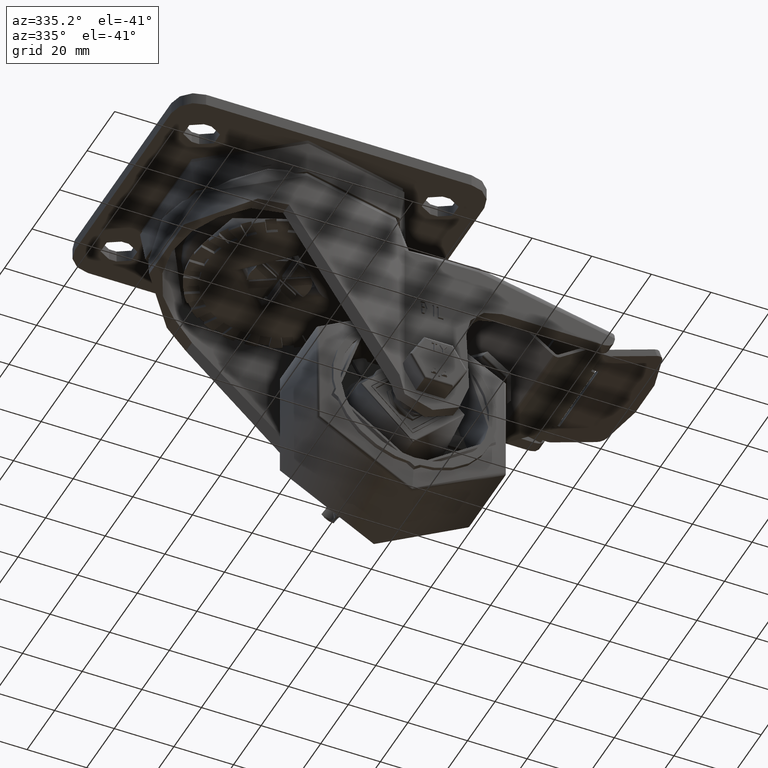
[diagram: clean part render]
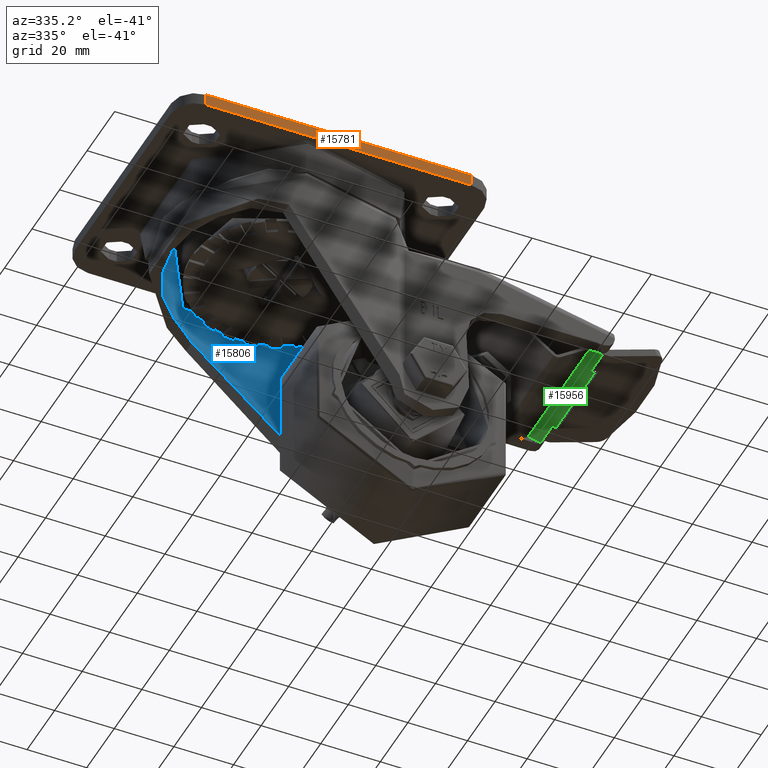
[diagram: same view with three faces highlighted in distinct colors, each labeled with its STEP entity id]
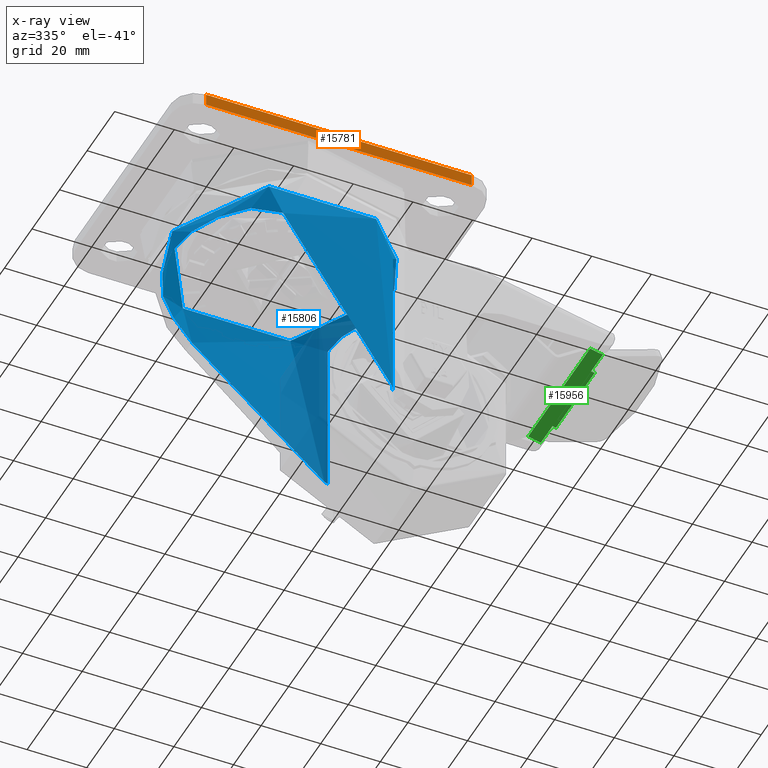
[diagram: x-ray of the same camera — body ghosted, the three highlighted faces saturated]
A machine part, auxiliary view with three faces highlighted in distinct colors.
The next image is the same camera in x-ray (body ghosted, the three faces saturated) — at least one of them is partly hidden behind the body in this view.
Their STEP definitions:

[orange] entity #15781 — the highlighted planar face has unit normal (0, -1, 0).
#1141=PLANE('',#17175);
#1711=FACE_OUTER_BOUND('',#2686,.T.);
#2686=EDGE_LOOP('',(#11418,#11419,#11420,#11421));
#3578=LINE('',#23631,#4670);
#3581=LINE('',#23643,#4673);
#3840=LINE('',#24429,#4932);
#3851=LINE('',#24443,#4943);
#4670=VECTOR('',#18837,1000.);
#4673=VECTOR('',#18848,1000.);
#4932=VECTOR('',#19649,1000.);
#4943=VECTOR('',#19666,1000.);
#6672=VERTEX_POINT('',#23628);
#6673=VERTEX_POINT('',#23630);
#6675=VERTEX_POINT('',#23636);
#6678=VERTEX_POINT('',#23641);
#8178=EDGE_CURVE('',#6672,#6673,#3578,.T.);
#8184=EDGE_CURVE('',#6678,#6675,#3581,.T.);
#8575=EDGE_CURVE('',#6672,#6675,#3840,.T.);
#8586=EDGE_CURVE('',#6678,#6673,#3851,.T.);
#11418=ORIENTED_EDGE('',*,*,#8184,.F.);
#11419=ORIENTED_EDGE('',*,*,#8586,.T.);
#11420=ORIENTED_EDGE('',*,*,#8178,.F.);
#11421=ORIENTED_EDGE('',*,*,#8575,.T.);
#15781=ADVANCED_FACE('',(#1711),#1141,.T.);
#17175=AXIS2_PLACEMENT_3D('',#24442,#19664,#19665);
#18837=DIRECTION('',(0.,0.,-1.));
#18848=DIRECTION('',(0.,0.,1.));
#19649=DIRECTION('',(-1.,0.,0.));
#19664=DIRECTION('center_axis',(0.,-1.,0.));
#19665=DIRECTION('ref_axis',(-1.,0.,0.));
#19666=DIRECTION('',(1.,0.,0.));
#23628=CARTESIAN_POINT('',(44.5,-43.,0.));
#23630=CARTESIAN_POINT('',(44.5,-43.,-4.));
#23631=CARTESIAN_POINT('',(44.5,-43.,0.));
#23636=CARTESIAN_POINT('',(-44.5,-43.,0.));
#23641=CARTESIAN_POINT('',(-44.5,-43.,-4.));
#23643=CARTESIAN_POINT('',(-44.5,-43.,0.));
#24429=CARTESIAN_POINT('',(52.5,-43.,0.));
#24442=CARTESIAN_POINT('Origin',(0.,-43.,0.));
#24443=CARTESIAN_POINT('',(52.5,-43.,-4.));

[blue] entity #15806 — the highlighted cylindrical surface (bore or boss wall) has radius 36 mm, axis along (0, 0, 1).
#484=B_SPLINE_CURVE_WITH_KNOTS('',3,(#24670,#24671,#24672,#24673),
 .UNSPECIFIED.,.F.,.F.,(4,4),(0.63297437132066,0.80506820590576),
 .UNSPECIFIED.);
#486=B_SPLINE_CURVE_WITH_KNOTS('',3,(#24685,#24686,#24687,#24688,#24689,
#24690,#24691,#24692,#24693,#24694),.UNSPECIFIED.,.F.,.F.,(4,2,2,2,4),(-21.4689637785978,
-21.3846147476685,-21.133643598647,-20.6734660432281,-20.4853687488418),
 .UNSPECIFIED.);
#487=B_SPLINE_CURVE_WITH_KNOTS('',3,(#24696,#24697,#24698,#24699,#24700,
#24701,#24702,#24703,#24704,#24705,#24706,#24707,#24708,#24709),
 .UNSPECIFIED.,.F.,.F.,(4,2,2,2,2,2,4),(-22.8253465363381,-22.569587741747,
-20.7713476717423,-18.9731076017376,-17.1748675317328,-16.4894518062821,
-16.4640457778498),.UNSPECIFIED.);
#488=B_SPLINE_CURVE_WITH_KNOTS('',3,(#24711,#24712,#24713,#24714),
 .UNSPECIFIED.,.F.,.F.,(4,4),(5.94662976585578,6.11872360044088),
 .UNSPECIFIED.);
#489=B_SPLINE_CURVE_WITH_KNOTS('',3,(#24718,#24719,#24720,#24721,#24722,
#24723,#24724,#24725,#24726,#24727,#24728,#24729,#24730,#24731,#24732,#24733,
#24734,#24735,#24736,#24737,#24738,#24739,#24740,#24741,#24742,#24743,#24744,
#24745,#24746,#24747,#24748,#24749,#24750,#24751,#24752,#24753,#24754,#24755,
#24756,#24757,#24758,#24759,#24760,#24761,#24762,#24763,#24764,#24765,#24766,
#24767,#24768,#24769),.UNSPECIFIED.,.F.,.F.,(4,3,3,3,3,3,3,3,3,3,3,3,3,
3,3,3,3,4),(-0.0070621197024796,-0.00673436486712896,-0.00611087053562126,
-0.00551750730298507,-0.00548742412780073,-0.00470811392198833,-0.00398377296965056,
-0.00353105898481995,-0.00307835983597059,-0.00307587917927862,-0.00235398726430527,
-0.00162622044506162,-0.00157543042059886,-0.0015498616019621,-0.000987154464468624,
-0.000596100616139268,-0.000398820204950402,0.),.UNSPECIFIED.);
#490=B_SPLINE_CURVE_WITH_KNOTS('',3,(#24773,#24774,#24775,#24776,#24777,
#24778,#24779,#24780,#24781,#24782,#24783,#24784,#24785,#24786,#24787,#24788,
#24789,#24790,#24791,#24792,#24793,#24794,#24795,#24796,#24797,#24798,#24799,
#24800,#24801,#24802,#24803,#24804,#24805,#24806,#24807,#24808,#24809,#24810,
#24811,#24812,#24813,#24814,#24815,#24816,#24817,#24818,#24819,#24820,#24821,
#24822,#24823,#24824,#24825,#24826,#24827,#24828,#24829,#24830),
 .UNSPECIFIED.,.F.,.F.,(4,3,3,3,3,3,3,3,3,3,3,3,3,3,3,3,3,3,3,4),(-0.00706133115819038,
-0.00680360496532051,-0.00678056333369026,-0.00651430579573841,-0.00623421773635698,
-0.00620985804769003,-0.0059378872986943,-0.00564205092754327,-0.00530461472474858,
-0.00501916233478228,-0.00472517933490894,-0.00467134215080287,-0.00462308037776127,
-0.00398341345564613,-0.00353075202837451,-0.00307806217607451,-0.00235377705273013,
-0.0011949946354082,-0.000905298866434664,0.),.UNSPECIFIED.);
#491=B_SPLINE_CURVE_WITH_KNOTS('',3,(#24833,#24834,#24835,#24836,#24837,
#24838,#24839,#24840,#24841,#24842,#24843,#24844,#24845,#24846),
 .UNSPECIFIED.,.F.,.F.,(4,2,2,2,2,2,4),(-7.90378237478147,-7.87837623259532,
-7.19296048497718,-5.39472036373289,-3.59648024248859,-1.7982401212443,
-1.54248160896631),.UNSPECIFIED.);
#492=B_SPLINE_CURVE_WITH_KNOTS('',3,(#24848,#24849,#24850,#24851,#24852,
#24853,#24854,#24855,#24856,#24857),.UNSPECIFIED.,.F.,.F.,(4,2,2,2,4),(-13.6077598613843,
-13.4196625669979,-12.959485011579,-12.7085138625576,-12.6241648316283),
 .UNSPECIFIED.);
#1736=FACE_OUTER_BOUND('',#2716,.T.);
#2716=EDGE_LOOP('',(#11556,#11557,#11558,#11559,#11560,#11561,#11562,#11563,
#11564,#11565,#11566,#11567,#11568,#11569,#11570,#11571));
#3882=LINE('',#24716,#4974);
#3883=LINE('',#24831,#4975);
#3884=LINE('',#24859,#4976);
#4974=VECTOR('',#19801,1000.);
#4975=VECTOR('',#19804,1000.);
#4976=VECTOR('',#19807,36.);
#5915=CIRCLE('',#17212,36.);
#5920=CIRCLE('',#17227,36.);
#5921=CIRCLE('',#17228,36.);
#5922=CIRCLE('',#17229,36.);
#6966=VERTEX_POINT('',#24631);
#6979=VERTEX_POINT('',#24667);
#6980=VERTEX_POINT('',#24669);
#6981=VERTEX_POINT('',#24681);
#6982=VERTEX_POINT('',#24682);
#6983=VERTEX_POINT('',#24684);
#6984=VERTEX_POINT('',#24695);
#6985=VERTEX_POINT('',#24710);
#6986=VERTEX_POINT('',#24715);
#6987=VERTEX_POINT('',#24717);
#6988=VERTEX_POINT('',#24770);
#6989=VERTEX_POINT('',#24772);
#6990=VERTEX_POINT('',#24832);
#6991=VERTEX_POINT('',#24847);
#8633=EDGE_CURVE('',#6966,#6966,#5915,.T.);
#8652=EDGE_CURVE('',#6979,#6980,#484,.T.);
#8654=EDGE_CURVE('',#6981,#6982,#5920,.T.);
#8655=EDGE_CURVE('',#6983,#6981,#486,.T.);
#8656=EDGE_CURVE('',#6984,#6983,#487,.T.);
#8657=EDGE_CURVE('',#6985,#6984,#488,.T.);
#8658=EDGE_CURVE('',#6986,#6985,#3882,.T.);
#8659=EDGE_CURVE('',#6987,#6986,#489,.T.);
#8660=EDGE_CURVE('',#6988,#6987,#5921,.T.);
#8661=EDGE_CURVE('',#6989,#6988,#490,.T.);
#8662=EDGE_CURVE('',#6980,#6989,#3883,.T.);
#8663=EDGE_CURVE('',#6990,#6979,#491,.T.);
#8664=EDGE_CURVE('',#6991,#6990,#492,.T.);
#8665=EDGE_CURVE('',#6982,#6991,#5922,.T.);
#8666=EDGE_CURVE('',#6982,#6966,#3884,.T.);
#11556=ORIENTED_EDGE('',*,*,#8654,.F.);
#11557=ORIENTED_EDGE('',*,*,#8655,.F.);
#11558=ORIENTED_EDGE('',*,*,#8656,.F.);
#11559=ORIENTED_EDGE('',*,*,#8657,.F.);
#11560=ORIENTED_EDGE('',*,*,#8658,.F.);
#11561=ORIENTED_EDGE('',*,*,#8659,.F.);
#11562=ORIENTED_EDGE('',*,*,#8660,.F.);
#11563=ORIENTED_EDGE('',*,*,#8661,.F.);
#11564=ORIENTED_EDGE('',*,*,#8662,.F.);
#11565=ORIENTED_EDGE('',*,*,#8652,.F.);
#11566=ORIENTED_EDGE('',*,*,#8663,.F.);
#11567=ORIENTED_EDGE('',*,*,#8664,.F.);
#11568=ORIENTED_EDGE('',*,*,#8665,.F.);
#11569=ORIENTED_EDGE('',*,*,#8666,.T.);
#11570=ORIENTED_EDGE('',*,*,#8633,.F.);
#11571=ORIENTED_EDGE('',*,*,#8666,.F.);
#15395=CYLINDRICAL_SURFACE('',#17226,36.);
#15806=ADVANCED_FACE('',(#1736),#15395,.F.);
#17212=AXIS2_PLACEMENT_3D('',#24632,#19759,#19760);
#17226=AXIS2_PLACEMENT_3D('',#24680,#19797,#19798);
#17227=AXIS2_PLACEMENT_3D('',#24683,#19799,#19800);
#17228=AXIS2_PLACEMENT_3D('',#24771,#19802,#19803);
#17229=AXIS2_PLACEMENT_3D('',#24858,#19805,#19806);
#19759=DIRECTION('center_axis',(-3.85494105772624E-16,0.,-1.));
#19760=DIRECTION('ref_axis',(1.,0.,-3.85494105772624E-16));
#19797=DIRECTION('center_axis',(2.89120579329468E-16,0.,1.));
#19798=DIRECTION('ref_axis',(1.,0.,-2.89120579329468E-16));
#19799=DIRECTION('center_axis',(-3.98096831679234E-16,0.,1.));
#19800=DIRECTION('ref_axis',(1.,0.,3.98096831679234E-16));
#19801=DIRECTION('',(-2.89120579329468E-16,0.,-1.));
#19802=DIRECTION('center_axis',(1.27116381754407E-15,0.,1.));
#19803=DIRECTION('ref_axis',(1.,-2.22044604925031E-16,-1.27116381754407E-15));
#19804=DIRECTION('',(2.89120579329468E-16,0.,1.));
#19805=DIRECTION('center_axis',(-3.98096831679234E-16,0.,1.));
#19806=DIRECTION('ref_axis',(1.,0.,3.98096831679234E-16));
#19807=DIRECTION('',(2.89120579329468E-16,0.,1.));
#24631=CARTESIAN_POINT('',(-36.,2.53016542697676E-15,-18.));
#24632=CARTESIAN_POINT('Origin',(-1.13046146517821E-15,6.93889390390723E-15,
-18.));
#24667=CARTESIAN_POINT('',(26.3193158417228,-24.56203602358,-77.));
#24669=CARTESIAN_POINT('',(27.1119562508143,-23.6842105262964,-78.3409049661208));
#24670=CARTESIAN_POINT('Ctrl Pts',(26.3193158417228,-24.5620360235799,-76.9999999999999));
#24671=CARTESIAN_POINT('Ctrl Pts',(26.563682294878,-24.3001864824613,-77.4757278930307));
#24672=CARTESIAN_POINT('Ctrl Pts',(26.8310994777145,-24.0057148693091,-77.9243376836035));
#24673=CARTESIAN_POINT('Ctrl Pts',(27.1119562508226,-23.6842105262869,-78.3409049661079));
#24680=CARTESIAN_POINT('Origin',(-2.42861286636753E-14,6.93889390390723E-15,
-98.09));
#24681=CARTESIAN_POINT('',(-22.5698338903178,28.0464364610455,-26.));
#24682=CARTESIAN_POINT('',(-36.,2.53016542697676E-15,-26.));
#24683=CARTESIAN_POINT('Origin',(-3.44342609981396E-15,6.93889390390723E-15,
-26.));
#24684=CARTESIAN_POINT('',(-14.11431907495,33.1177595415285,-28.8418518916849));
#24685=CARTESIAN_POINT('Ctrl Pts',(-14.11431907495,33.1177595415285,-28.8418518916849));
#24686=CARTESIAN_POINT('Ctrl Pts',(-14.3436448859517,33.0200241357097,-28.6680714602326));
#24687=CARTESIAN_POINT('Ctrl Pts',(-14.5792708273396,32.916768920026,-28.5007250554345));
#24688=CARTESIAN_POINT('Ctrl Pts',(-15.5296701790482,32.4875137822048,-27.8688099433933));
#24689=CARTESIAN_POINT('Ctrl Pts',(-16.2729137247664,32.1216674363881,-27.4734918562243));
#24690=CARTESIAN_POINT('Ctrl Pts',(-18.2237715932761,31.0796145402255,-26.6205386838106));
#24691=CARTESIAN_POINT('Ctrl Pts',(-19.614942114586,30.2320878355548,-26.2488391878335));
#24692=CARTESIAN_POINT('Ctrl Pts',(-21.5058080593253,28.8782880078357,-26.0295706067935));
#24693=CARTESIAN_POINT('Ctrl Pts',(-22.0468124008876,28.4673280118812,-26.));
#24694=CARTESIAN_POINT('Ctrl Pts',(-22.5698338903178,28.0464364610455,-26.));
#24695=CARTESIAN_POINT('',(26.3193158417228,24.56203602358,-77.));
#24696=CARTESIAN_POINT('Ctrl Pts',(26.3193158417228,24.56203602358,-77.));
#24697=CARTESIAN_POINT('Ctrl Pts',(25.9565129529804,24.9507954817916,-76.2937023408149));
#24698=CARTESIAN_POINT('Ctrl Pts',(25.5850564280664,25.3315660051622,-75.5851816155766));
#24699=CARTESIAN_POINT('Ctrl Pts',(22.5328085161737,28.3245285936892,-69.8829621072853));
#24700=CARTESIAN_POINT('Ctrl Pts',(19.432702855224,30.5524161438892,-64.8246757996998));
#24701=CARTESIAN_POINT('Ctrl Pts',(12.4701299846541,33.9937631139941,-54.9855058891085));
#24702=CARTESIAN_POINT('Ctrl Pts',(8.61108498509301,35.2018434391274,-50.2092029586506));
#24703=CARTESIAN_POINT('Ctrl Pts',(0.35223957846946,36.2380530667343,-41.2491834466209));
#24704=CARTESIAN_POINT('Ctrl Pts',(-4.04699366854766,36.0720293923113,-37.0656212495112));
#24705=CARTESIAN_POINT('Ctrl Pts',(-10.2776124136605,34.5471322215919,-31.8317431560391));
#24706=CARTESIAN_POINT('Ctrl Pts',(-12.0861704239224,33.9682251230216,-30.3842263317315));
#24707=CARTESIAN_POINT('Ctrl Pts',(-13.9789531878011,33.1752053176719,-28.9445264652372));
#24708=CARTESIAN_POINT('Ctrl Pts',(-14.046626887444,33.1466089910857,-28.8931482438021));
#24709=CARTESIAN_POINT('Ctrl Pts',(-14.11431907495,33.1177595415285,-28.8418518916848));
#24710=CARTESIAN_POINT('',(27.1119562508143,23.6842105262964,-78.3409049661208));
#24711=CARTESIAN_POINT('Ctrl Pts',(27.1119562508226,23.6842105262869,-78.3409049661079));
#24712=CARTESIAN_POINT('Ctrl Pts',(26.831107110996,24.0057061312854,-77.9243490053007));
#24713=CARTESIAN_POINT('Ctrl Pts',(26.5636870967259,24.3001813370674,-77.4757372411755));
#24714=CARTESIAN_POINT('Ctrl Pts',(26.3193158417228,24.5620360235799,-77.));
#24715=CARTESIAN_POINT('',(27.1119562507974,23.6842105263158,-25.));
#24716=CARTESIAN_POINT('',(27.1119562507974,23.6842105263158,-98.09));
#24717=CARTESIAN_POINT('',(30.0033239155828,19.8947368421053,-21.));
#24718=CARTESIAN_POINT('Ctrl Pts',(30.0033239155828,19.8947368421053,-21.));
#24719=CARTESIAN_POINT('Ctrl Pts',(29.9461257033194,19.9809976709643,-21.));
#24720=CARTESIAN_POINT('Ctrl Pts',(29.8884712112617,20.0671376886712,-21.0031108156287));
#24721=CARTESIAN_POINT('Ctrl Pts',(29.830493307496,20.1529568309833,-21.0092987949653));
#24722=CARTESIAN_POINT('Ctrl Pts',(29.7202008252754,20.3162122371446,-21.021070307156));
#24723=CARTESIAN_POINT('Ctrl Pts',(29.6087338231053,20.4783010447178,-21.043988604002));
#24724=CARTESIAN_POINT('Ctrl Pts',(29.4970816637467,20.6378819970274,-21.0776780245607));
#24725=CARTESIAN_POINT('Ctrl Pts',(29.3908252266631,20.7897510116192,-21.1097393641401));
#24726=CARTESIAN_POINT('Ctrl Pts',(29.2845862936374,20.93910026632,-21.1514362492841));
#24727=CARTESIAN_POINT('Ctrl Pts',(29.1783352726998,21.0861269872876,-21.2028377468878));
#24728=CARTESIAN_POINT('Ctrl Pts',(29.1729484069479,21.0935811576176,-21.2054437733015));
#24729=CARTESIAN_POINT('Ctrl Pts',(29.1675615516049,21.1010293004361,-21.2080747333552));
#24730=CARTESIAN_POINT('Ctrl Pts',(29.1621747032445,21.1084714410672,-21.2107306351637));
#24731=CARTESIAN_POINT('Ctrl Pts',(29.022627402181,21.3012614677648,-21.2795322617302));
#24732=CARTESIAN_POINT('Ctrl Pts',(28.8833274478734,21.4896494740038,-21.365064191919));
#24733=CARTESIAN_POINT('Ctrl Pts',(28.7465333430498,21.6711056653094,-21.466708508272));
#24734=CARTESIAN_POINT('Ctrl Pts',(28.6193881171525,21.8397627025681,-21.5611832634565));
#24735=CARTESIAN_POINT('Ctrl Pts',(28.4946796411896,22.0021046115158,-21.6692020499095));
#24736=CARTESIAN_POINT('Ctrl Pts',(28.3725421289371,22.15849392765,-21.7921686750995));
#24737=CARTESIAN_POINT('Ctrl Pts',(28.2962060337727,22.2562374423078,-21.8690229668682));
#24738=CARTESIAN_POINT('Ctrl Pts',(28.2210574308234,22.3514144533943,-21.9516081737916));
#24739=CARTESIAN_POINT('Ctrl Pts',(28.147793503608,22.4433001334087,-22.0397491491311));
#24740=CARTESIAN_POINT('Ctrl Pts',(28.0745319773394,22.535182802219,-22.1278872359849));
#24741=CARTESIAN_POINT('Ctrl Pts',(28.0031559930141,22.6237739456667,-22.2215785412257));
#24742=CARTESIAN_POINT('Ctrl Pts',(27.9343649736097,22.7083961019096,-22.3205887458405));
#24743=CARTESIAN_POINT('Ctrl Pts',(27.9339880192834,22.7088598061571,-22.3211312923138));
#24744=CARTESIAN_POINT('Ctrl Pts',(27.9336111469972,22.7093233858992,-22.3216739890908));
#24745=CARTESIAN_POINT('Ctrl Pts',(27.933234356808,22.709786841101,-22.3222168362471));
#24746=CARTESIAN_POINT('Ctrl Pts',(27.8235852497288,22.8446561941244,-22.480189914289));
#24747=CARTESIAN_POINT('Ctrl Pts',(27.7209123230249,22.9689498861175,-22.6508590126347));
#24748=CARTESIAN_POINT('Ctrl Pts',(27.626596324585,23.0818364849619,-22.8361128290197));
#24749=CARTESIAN_POINT('Ctrl Pts',(27.5315127632308,23.1956417780703,-23.0228742789083));
#24750=CARTESIAN_POINT('Ctrl Pts',(27.4450785973604,23.2976455588713,-23.2248127671726));
#24751=CARTESIAN_POINT('Ctrl Pts',(27.3718457260163,23.3833712958248,-23.4381059700222));
#24752=CARTESIAN_POINT('Ctrl Pts',(27.3667348866255,23.3893539981985,-23.4529914617814));
#24753=CARTESIAN_POINT('Ctrl Pts',(27.3616883575104,23.3952574026661,-23.4679322622577));
#24754=CARTESIAN_POINT('Ctrl Pts',(27.3567076924803,23.4010799799787,-23.4829270743772));
#24755=CARTESIAN_POINT('Ctrl Pts',(27.3542003158411,23.4040111938317,-23.4904757935525));
#24756=CARTESIAN_POINT('Ctrl Pts',(27.351709851346,23.4069217006553,-23.4980365488715));
#24757=CARTESIAN_POINT('Ctrl Pts',(27.3492363910121,23.4098114281523,-23.5056094074071));
#24758=CARTESIAN_POINT('Ctrl Pts',(27.2948015810204,23.4734072598966,-23.6722694948264));
#24759=CARTESIAN_POINT('Ctrl Pts',(27.2486329864215,23.5269034551475,-23.8446729224041));
#24760=CARTESIAN_POINT('Ctrl Pts',(27.2116791583677,23.5695676112741,-24.0235659529258));
#24761=CARTESIAN_POINT('Ctrl Pts',(27.1859980612071,23.5992171062376,-24.1478878307973));
#24762=CARTESIAN_POINT('Ctrl Pts',(27.1648846677828,23.623501141623,-24.275279903558));
#24763=CARTESIAN_POINT('Ctrl Pts',(27.1488392541078,23.641925270779,-24.4042903771089));
#24764=CARTESIAN_POINT('Ctrl Pts',(27.140744599571,23.651219949226,-24.4693740973651));
#24765=CARTESIAN_POINT('Ctrl Pts',(27.1339403590734,23.6590225773262,-24.5348634277577));
#24766=CARTESIAN_POINT('Ctrl Pts',(27.128490770033,23.6652696697129,-24.6005687966499));
#24767=CARTESIAN_POINT('Ctrl Pts',(27.1174739326041,23.6778987323297,-24.7333981461531));
#24768=CARTESIAN_POINT('Ctrl Pts',(27.1119562507974,23.6842105263158,-24.8670599316831));
#24769=CARTESIAN_POINT('Ctrl Pts',(27.1119562507974,23.6842105263158,-24.9999999999999));
#24770=CARTESIAN_POINT('',(30.0033239155827,-19.8947368421053,-21.));
#24771=CARTESIAN_POINT('Origin',(-1.99782320316661E-15,6.93889390390723E-15,
-21.));
#24772=CARTESIAN_POINT('',(27.1119562507974,-23.6842105263158,-25.));
#24773=CARTESIAN_POINT('Ctrl Pts',(27.1119562507974,-23.6842105263158,-24.9999999999999));
#24774=CARTESIAN_POINT('Ctrl Pts',(27.1119562507974,-23.6842105263158,-24.9140912690433));
#24775=CARTESIAN_POINT('Ctrl Pts',(27.1143629684946,-23.6814564283201,-24.8282001399067));
#24776=CARTESIAN_POINT('Ctrl Pts',(27.1190957948715,-23.6760353030694,-24.7426810607597));
#24777=CARTESIAN_POINT('Ctrl Pts',(27.1195189262604,-23.6755506353309,-24.7350353531305));
#24778=CARTESIAN_POINT('Ctrl Pts',(27.1199606657591,-23.6750446320904,-24.7273925947108));
#24779=CARTESIAN_POINT('Ctrl Pts',(27.1204209649727,-23.6745173449272,-24.7197530248982));
#24780=CARTESIAN_POINT('Ctrl Pts',(27.1257399518094,-23.6684242789455,-24.6314739879811));
#24781=CARTESIAN_POINT('Ctrl Pts',(27.1335574926352,-23.6594681392882,-24.5436394024732));
#24782=CARTESIAN_POINT('Ctrl Pts',(27.1436813202584,-23.6478483986063,-24.4565937112705));
#24783=CARTESIAN_POINT('Ctrl Pts',(27.1543310215,-23.635625080374,-24.365026505647));
#24784=CARTESIAN_POINT('Ctrl Pts',(27.1675327291802,-23.6204543640408,-24.2743313665295));
#24785=CARTESIAN_POINT('Ctrl Pts',(27.1830958689962,-23.6025305458707,-24.1848836116909));
#24786=CARTESIAN_POINT('Ctrl Pts',(27.1844494191669,-23.6009716838781,-24.177104203084));
#24787=CARTESIAN_POINT('Ctrl Pts',(27.1858208516432,-23.5993919741757,-24.1693342199984));
#24788=CARTESIAN_POINT('Ctrl Pts',(27.1872100525479,-23.5977915315206,-24.1615739046379));
#24789=CARTESIAN_POINT('Ctrl Pts',(27.2027201855277,-23.579922929275,-24.0749316322394));
#24790=CARTESIAN_POINT('Ctrl Pts',(27.2205043950181,-23.5594004682449,-23.9890601406927));
#24791=CARTESIAN_POINT('Ctrl Pts',(27.240384192354,-23.5363923210828,-23.9040892780047));
#24792=CARTESIAN_POINT('Ctrl Pts',(27.2620084557161,-23.5113651930241,-23.8116621630889));
#24793=CARTESIAN_POINT('Ctrl Pts',(27.2861042605056,-23.4834065159932,-23.7205224986137));
#24794=CARTESIAN_POINT('Ctrl Pts',(27.3125042348461,-23.4526610752618,-23.631022247096));
#24795=CARTESIAN_POINT('Ctrl Pts',(27.3426165129973,-23.4175922812075,-23.5289366755897));
#24796=CARTESIAN_POINT('Ctrl Pts',(27.3756131196708,-23.3790294558277,-23.4291976199003));
#24797=CARTESIAN_POINT('Ctrl Pts',(27.411312840771,-23.3370966038905,-23.3318265033771));
#24798=CARTESIAN_POINT('Ctrl Pts',(27.4415128330207,-23.3016237272269,-23.2494559168929));
#24799=CARTESIAN_POINT('Ctrl Pts',(27.4736030782604,-23.2637908391586,-23.1689049543498));
#24800=CARTESIAN_POINT('Ctrl Pts',(27.5074186091935,-23.2237372666021,-23.0904189427135));
#24801=CARTESIAN_POINT('Ctrl Pts',(27.5422447013036,-23.1824867119397,-23.0095874136741));
#24802=CARTESIAN_POINT('Ctrl Pts',(27.5789005980621,-23.1388807717733,-22.9309462673156));
#24803=CARTESIAN_POINT('Ctrl Pts',(27.6171716658706,-23.0931121615061,-22.854777728353));
#24804=CARTESIAN_POINT('Ctrl Pts',(27.6241802565865,-23.0847305438673,-22.8408289637748));
#24805=CARTESIAN_POINT('Ctrl Pts',(27.6312429282499,-23.0762765036024,-22.8269631555027));
#24806=CARTESIAN_POINT('Ctrl Pts',(27.6383582497615,-23.0677513653181,-22.8131820791815));
#24807=CARTESIAN_POINT('Ctrl Pts',(27.6447367043113,-23.0601090954658,-22.8008281793866));
#24808=CARTESIAN_POINT('Ctrl Pts',(27.6511574842991,-23.0524096721898,-22.7885305867887));
#24809=CARTESIAN_POINT('Ctrl Pts',(27.6576197499998,-23.0446538217921,-22.7762894228328));
#24810=CARTESIAN_POINT('Ctrl Pts',(27.7432713402781,-22.9418569156771,-22.6140436706084));
#24811=CARTESIAN_POINT('Ctrl Pts',(27.8360723273467,-22.8292990658708,-22.4621817059354));
#24812=CARTESIAN_POINT('Ctrl Pts',(27.9334283354665,-22.7095482435833,-22.3219404953747));
#24813=CARTESIAN_POINT('Ctrl Pts',(28.0023224865714,-22.624806362677,-22.2226985550148));
#24814=CARTESIAN_POINT('Ctrl Pts',(28.0733752779144,-22.5366186014125,-22.1294064481522));
#24815=CARTESIAN_POINT('Ctrl Pts',(28.1460254599559,-22.4455173878341,-22.0418784655391));
#24816=CARTESIAN_POINT('Ctrl Pts',(28.2186802040903,-22.354410453524,-21.9543449865765));
#24817=CARTESIAN_POINT('Ctrl Pts',(28.2933905375155,-22.2598155089664,-21.872037124078));
#24818=CARTESIAN_POINT('Ctrl Pts',(28.369624272233,-22.1622295505739,-21.7951092528656));
#24819=CARTESIAN_POINT('Ctrl Pts',(28.4915951087171,-22.0060960354268,-21.672027826572));
#24820=CARTESIAN_POINT('Ctrl Pts',(28.6174615120959,-21.8422947262856,-21.5627320880158));
#24821=CARTESIAN_POINT('Ctrl Pts',(28.7450891213158,-21.6730212800986,-21.4677800019274));
#24822=CARTESIAN_POINT('Ctrl Pts',(28.9492802951536,-21.4022010094085,-21.3158663365751));
#24823=CARTESIAN_POINT('Ctrl Pts',(29.1566908794876,-21.1191137125168,-21.2010766217684));
#24824=CARTESIAN_POINT('Ctrl Pts',(29.3649352566985,-20.8254790430818,-21.1225427201509));
#24825=CARTESIAN_POINT('Ctrl Pts',(29.4169963805891,-20.7520703340026,-21.1029092335882));
#24826=CARTESIAN_POINT('Ctrl Pts',(29.4690777913482,-20.6780374158333,-21.0855927645712));
#24827=CARTESIAN_POINT('Ctrl Pts',(29.5210814060099,-20.6035160139514,-21.0706225696986));
#24828=CARTESIAN_POINT('Ctrl Pts',(29.6835926279395,-20.3706367389524,-21.0238407319921));
#24829=CARTESIAN_POINT('Ctrl Pts',(29.8453354707479,-20.1329997818425,-21.));
#24830=CARTESIAN_POINT('Ctrl Pts',(30.0033239155827,-19.8947368421053,-21.));
#24831=CARTESIAN_POINT('',(27.1119562507974,-23.6842105263158,-98.09));
#24832=CARTESIAN_POINT('',(-14.11431907495,-33.1177595415285,-28.8418518916849));
#24833=CARTESIAN_POINT('Ctrl Pts',(-14.11431907495,-33.1177595415285,-28.8418518916848));
#24834=CARTESIAN_POINT('Ctrl Pts',(-14.0466265840623,-33.1466091203827,
-28.8931484737013));
#24835=CARTESIAN_POINT('Ctrl Pts',(-13.9789525811924,-33.1752055740016,
-28.9445269257777));
#24836=CARTESIAN_POINT('Ctrl Pts',(-12.0861694521163,-33.9682254714021,
-30.3842270941656));
#24837=CARTESIAN_POINT('Ctrl Pts',(-10.2776113850819,-34.5471325295174,
-31.8317439909092));
#24838=CARTESIAN_POINT('Ctrl Pts',(-4.0469924778699,-36.0720295363057,-37.0656223262198));
#24839=CARTESIAN_POINT('Ctrl Pts',(0.352240846746057,-36.2380530620221,
-41.2491846993947));
#24840=CARTESIAN_POINT('Ctrl Pts',(8.61108634681471,-35.2018431138625,-50.2092045591614));
#24841=CARTESIAN_POINT('Ctrl Pts',(12.4701313620392,-33.9937626166403,-54.9855076612342));
#24842=CARTESIAN_POINT('Ctrl Pts',(19.4327042111901,-30.5524152902466,-64.8246778902135));
#24843=CARTESIAN_POINT('Ctrl Pts',(22.5328098331325,-28.3245275589525,-69.8829643416494));
#24844=CARTESIAN_POINT('Ctrl Pts',(25.58505724798,-25.3315651646714,-75.5851831794822));
#24845=CARTESIAN_POINT('Ctrl Pts',(25.9565133533085,-24.9507950528222,-76.2937031201659));
#24846=CARTESIAN_POINT('Ctrl Pts',(26.3193158417228,-24.5620360235799,-77.));
#24847=CARTESIAN_POINT('',(-22.5698338903178,-28.0464364610455,-26.));
#24848=CARTESIAN_POINT('Ctrl Pts',(-22.5698338903178,-28.0464364610455,
-26.));
#24849=CARTESIAN_POINT('Ctrl Pts',(-22.0468124008876,-28.4673280118812,
-26.));
#24850=CARTESIAN_POINT('Ctrl Pts',(-21.5058080593253,-28.8782880078356,
-26.0295706067935));
#24851=CARTESIAN_POINT('Ctrl Pts',(-19.614942114586,-30.2320878355548,-26.2488391878335));
#24852=CARTESIAN_POINT('Ctrl Pts',(-18.2237715932761,-31.0796145402254,
-26.6205386838106));
#24853=CARTESIAN_POINT('Ctrl Pts',(-16.2729137247664,-32.1216674363881,
-27.4734918562243));
#24854=CARTESIAN_POINT('Ctrl Pts',(-15.5296701790482,-32.4875137822047,
-27.8688099433933));
#24855=CARTESIAN_POINT('Ctrl Pts',(-14.5792708273396,-32.916768920026,-28.5007250554345));
#24856=CARTESIAN_POINT('Ctrl Pts',(-14.3436448859517,-33.0200241357097,
-28.6680714602326));
#24857=CARTESIAN_POINT('Ctrl Pts',(-14.11431907495,-33.1177595415285,-28.8418518916849));
#24858=CARTESIAN_POINT('Origin',(-3.44342609981396E-15,6.93889390390723E-15,
-26.));
#24859=CARTESIAN_POINT('',(-36.,2.53016542697676E-15,-98.09));

[green] entity #15956 — the highlighted planar face has unit normal (-0.2169, 0, -0.9762).
#1243=PLANE('',#17441);
#1886=FACE_OUTER_BOUND('',#2880,.T.);
#2880=EDGE_LOOP('',(#12371,#12372,#12373,#12374,#12375,#12376,#12377,#12378));
#4143=LINE('',#27168,#5235);
#4150=LINE('',#27180,#5242);
#4157=LINE('',#27192,#5249);
#4160=LINE('',#27200,#5252);
#4165=LINE('',#27208,#5257);
#4166=LINE('',#27211,#5258);
#4167=LINE('',#27213,#5259);
#4168=LINE('',#27214,#5260);
#5235=VECTOR('',#20478,1000.);
#5242=VECTOR('',#20487,1000.);
#5249=VECTOR('',#20498,1000.);
#5252=VECTOR('',#20503,1000.);
#5257=VECTOR('',#20510,1000.);
#5258=VECTOR('',#20513,1000.);
#5259=VECTOR('',#20514,1000.);
#5260=VECTOR('',#20515,1000.);
#7220=VERTEX_POINT('',#27165);
#7221=VERTEX_POINT('',#27167);
#7224=VERTEX_POINT('',#27177);
#7225=VERTEX_POINT('',#27179);
#7231=VERTEX_POINT('',#27197);
#7232=VERTEX_POINT('',#27199);
#7235=VERTEX_POINT('',#27210);
#7236=VERTEX_POINT('',#27212);
#9030=EDGE_CURVE('',#7221,#7220,#4143,.T.);
#9037=EDGE_CURVE('',#7225,#7224,#4150,.T.);
#9044=EDGE_CURVE('',#7224,#7221,#4157,.T.);
#9047=EDGE_CURVE('',#7231,#7232,#4160,.T.);
#9052=EDGE_CURVE('',#7225,#7231,#4165,.T.);
#9053=EDGE_CURVE('',#7235,#7220,#4166,.T.);
#9054=EDGE_CURVE('',#7236,#7235,#4167,.T.);
#9055=EDGE_CURVE('',#7232,#7236,#4168,.T.);
#12371=ORIENTED_EDGE('',*,*,#9053,.F.);
#12372=ORIENTED_EDGE('',*,*,#9054,.F.);
#12373=ORIENTED_EDGE('',*,*,#9055,.F.);
#12374=ORIENTED_EDGE('',*,*,#9047,.F.);
#12375=ORIENTED_EDGE('',*,*,#9052,.F.);
#12376=ORIENTED_EDGE('',*,*,#9037,.T.);
#12377=ORIENTED_EDGE('',*,*,#9044,.T.);
#12378=ORIENTED_EDGE('',*,*,#9030,.T.);
#15956=ADVANCED_FACE('',(#1886),#1243,.T.);
#17441=AXIS2_PLACEMENT_3D('',#27209,#20511,#20512);
#20478=DIRECTION('',(0.976187060183956,0.,-0.216930457818642));
#20487=DIRECTION('',(-0.976187060183956,0.,0.216930457818642));
#20498=DIRECTION('',(0.,1.,0.));
#20503=DIRECTION('',(0.976187060183956,0.,-0.216930457818642));
#20510=DIRECTION('',(0.,1.,0.));
#20511=DIRECTION('center_axis',(-0.216930457818642,0.,-0.976187060183956));
#20512=DIRECTION('ref_axis',(0.976187060183956,0.,-0.216930457818642));
#20513=DIRECTION('',(0.,1.,0.));
#20514=DIRECTION('',(-0.976187060183956,0.,0.216930457818642));
#20515=DIRECTION('',(0.,1.,0.));
#27165=CARTESIAN_POINT('',(98.0257074862345,22.5,-36.7442220446851));
#27167=CARTESIAN_POINT('',(93.7732633132977,22.5,-35.7992344506992));
#27168=CARTESIAN_POINT('',(93.7732633132977,22.5,-35.7992344506992));
#27177=CARTESIAN_POINT('',(93.7732633132977,-22.5,-35.7992344506992));
#27179=CARTESIAN_POINT('',(98.0257074862345,-22.5,-36.7442220446851));
#27180=CARTESIAN_POINT('',(93.7732633132977,-22.5,-35.7992344506992));
#27192=CARTESIAN_POINT('',(93.7732633132977,1.29245397273839E-31,-35.7992344506992));
#27197=CARTESIAN_POINT('',(98.0257074862345,-14.,-36.7442220446851));
#27199=CARTESIAN_POINT('',(99.1956286578338,-14.,-37.0042045272627));
#27200=CARTESIAN_POINT('',(98.8066571343816,-14.,-36.91776641094));
#27208=CARTESIAN_POINT('',(98.0257074862345,-11.125,-36.7442220446851));
#27209=CARTESIAN_POINT('Origin',(96.4844459855658,0.,-36.4017194889809));
#27210=CARTESIAN_POINT('',(98.0257074862345,14.,-36.7442220446851));
#27211=CARTESIAN_POINT('',(98.0257074862345,9.,-36.7442220446851));
#27212=CARTESIAN_POINT('',(99.1956286578338,14.,-37.0042045272627));
#27213=CARTESIAN_POINT('',(100.171815718018,14.,-37.2211349850813));
#27214=CARTESIAN_POINT('',(99.1956286578338,0.,-37.0042045272627));